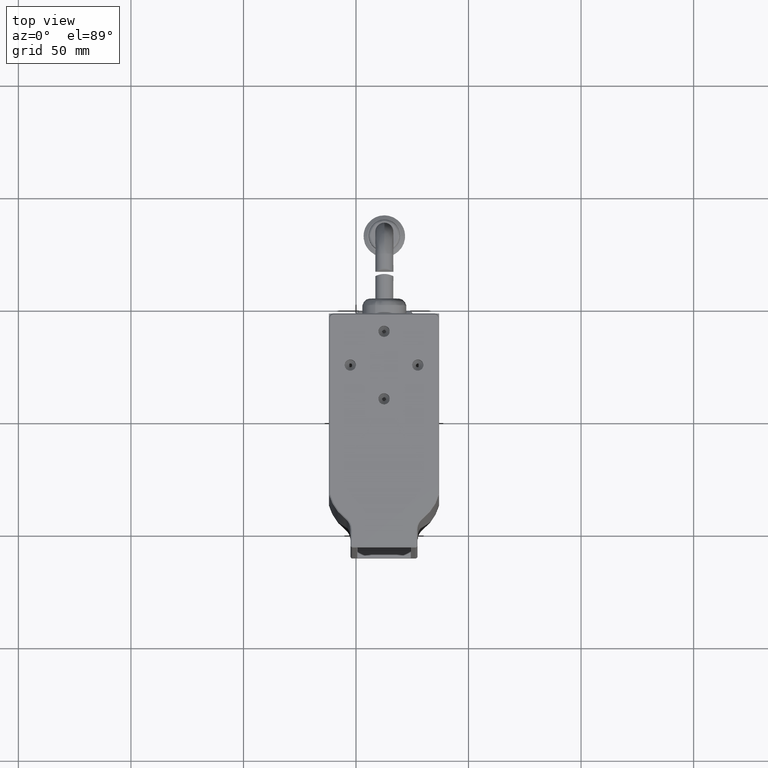
[diagram: clean part render]
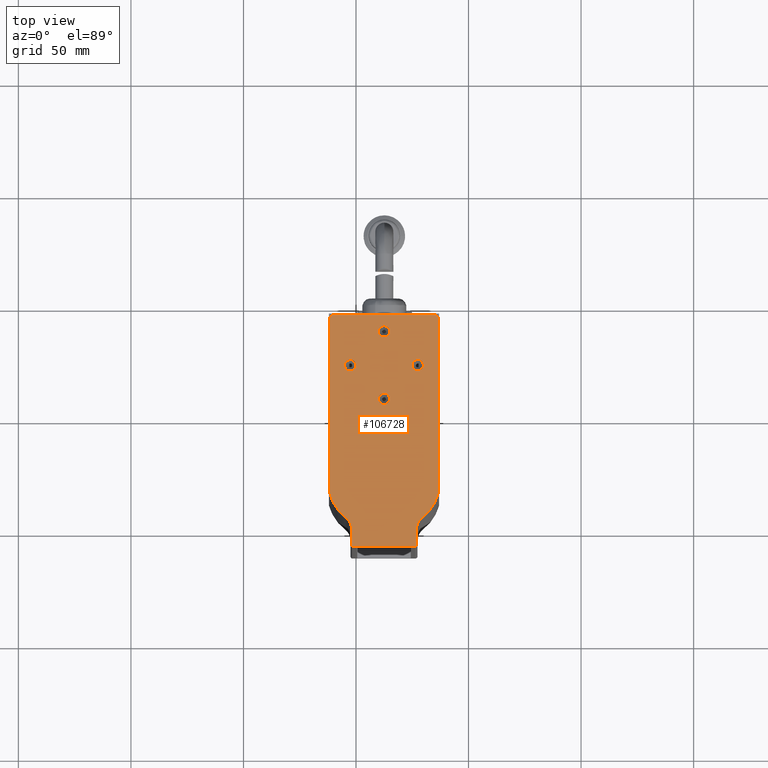
[diagram: same view with one face highlighted and labeled with its STEP entity id]
A machine part, top view. The second image highlights one B-rep face of the part: STEP entity #106728.
In plain terms, the highlighted planar face has unit normal (0, 0, -1).
Its self-contained STEP definition (entity closure, byte-faithful):
#489 = EDGE_CURVE ( 'NONE', #10592, #62649, #75304, .T. ) ;
#1630 = EDGE_CURVE ( 'NONE', #29000, #48265, #110262, .T. ) ;
#2596 = CARTESIAN_POINT ( 'NONE',  ( -61.56201180637545200, -36.23801724235212200, 142.0000000000000600 ) ) ;
#3131 = CIRCLE ( 'NONE', #53974, 1.499999999964529700 ) ;
#3778 = CARTESIAN_POINT ( 'NONE',  ( -37.56201180637544500, 36.00452420306967800, 142.0000000000000600 ) ) ;
#4639 = DIRECTION ( 'NONE',  ( 0.0000000000000000000, 1.000000000000000000, 0.0000000000000000000 ) ) ;
#6018 = FACE_BOUND ( 'NONE', #111613, .T. ) ;
#6130 = DIRECTION ( 'NONE',  ( 0.0000000000000000000, 0.0000000000000000000, -1.000000000000000000 ) ) ;
#6984 = CARTESIAN_POINT ( 'NONE',  ( -51.96201180638706100, -51.91295114031437700, 142.0000000000014500 ) ) ;
#9124 = CIRCLE ( 'NONE', #112116, 2.499999999999998700 ) ;
#9854 = CARTESIAN_POINT ( 'NONE',  ( -60.06201180637548000, 43.50452420309240900, 141.9999999999773200 ) ) ;
#10136 = EDGE_LOOP ( 'NONE', ( #108541, #96182 ) ) ;
#10592 = VERTEX_POINT ( 'NONE', #121908 ) ;
#11581 = AXIS2_PLACEMENT_3D ( 'NONE', #24391, #95141, #14859 ) ;
#13870 = CIRCLE ( 'NONE', #84839, 2.499999999999998700 ) ;
#14859 = DIRECTION ( 'NONE',  ( 0.0000000000000000000, 1.000000000000000000, 0.0000000000000000000 ) ) ;
#15448 = EDGE_CURVE ( 'NONE', #91281, #65148, #21791, .T. ) ;
#16136 = CARTESIAN_POINT ( 'NONE',  ( -22.56201180637544100, 21.00452420306967500, 142.0000000000000600 ) ) ;
#16587 = CARTESIAN_POINT ( 'NONE',  ( -42.60050320496788600, -31.14253440928075600, 142.0000000000000600 ) ) ;
#17168 = CARTESIAN_POINT ( 'NONE',  ( -60.06201180637545200, 42.00452420306967100, 141.9999999999545800 ) ) ;
#17413 = CARTESIAN_POINT ( 'NONE',  ( -58.46201180637545700, -51.91295114031439100, 142.0000000000313200 ) ) ;
#17424 = DIRECTION ( 'NONE',  ( -1.000000000000000000, -0.0000000000000000000, -0.0000000000000000000 ) ) ;
#17859 = EDGE_LOOP ( 'NONE', ( #31716, #79994 ) ) ;
#19100 = CARTESIAN_POINT ( 'NONE',  ( -13.56201180638113800, 42.00452420306967100, 142.0000000000057400 ) ) ;
#19122 = DIRECTION ( 'NONE',  ( 0.0000000000000000000, 0.0000000000000000000, 1.000000000000000000 ) ) ;
#20252 = ORIENTED_EDGE ( 'NONE', *, *, #123904, .F. ) ;
#21249 = DIRECTION ( 'NONE',  ( 0.0000000000000000000, -1.000000000000000000, 0.0000000000000000000 ) ) ;
#21357 = DIRECTION ( 'NONE',  ( 0.0000000000000000000, -1.000000000000000000, 0.0000000000000000000 ) ) ;
#21507 = DIRECTION ( 'NONE',  ( 0.0000000000000000000, -1.000000000000000000, 0.0000000000000000000 ) ) ;
#21621 = DIRECTION ( 'NONE',  ( 0.0000000000000000000, 1.000000000000000000, 0.0000000000000000000 ) ) ;
#21791 = CIRCLE ( 'NONE', #80540, 2.499999999999998700 ) ;
#22359 = ORIENTED_EDGE ( 'NONE', *, *, #44801, .F. ) ;
#22385 = VERTEX_POINT ( 'NONE', #53429 ) ;
#23359 = CARTESIAN_POINT ( 'NONE',  ( -13.56201180637544800, -7.995475796930315400, 142.0000000000000600 ) ) ;
#24391 = CARTESIAN_POINT ( 'NONE',  ( -37.56201180637544500, -7.995475796930315400, 142.0000000000000600 ) ) ;
#24838 = DIRECTION ( 'NONE',  ( 0.0000000000000000000, 1.000000000000000000, 0.0000000000000000000 ) ) ;
#25952 = DIRECTION ( 'NONE',  ( 0.0000000000000000000, -1.000000000000000000, 0.0000000000000000000 ) ) ;
#26087 = PLANE ( 'NONE',  #11581 ) ;
#26372 = DIRECTION ( 'NONE',  ( -0.0000000000000000000, -0.0000000000000000000, 1.000000000000000000 ) ) ;
#27589 = DIRECTION ( 'NONE',  ( 1.000000000000000000, 0.0000000000000000000, 0.0000000000000000000 ) ) ;
#27661 = FACE_BOUND ( 'NONE', #49294, .T. ) ;
#28138 = EDGE_CURVE ( 'NONE', #76583, #119623, #83942, .T. ) ;
#28768 = LINE ( 'NONE', #101812, #104413 ) ;
#28828 = VERTEX_POINT ( 'NONE', #45734 ) ;
#29000 = VERTEX_POINT ( 'NONE', #39133 ) ;
#30705 = CIRCLE ( 'NONE', #74992, 1.500000000021373100 ) ;
#30963 = CARTESIAN_POINT ( 'NONE',  ( -51.96201180634700700, -58.99547579693080500, 142.0000000000284800 ) ) ;
#31259 = ORIENTED_EDGE ( 'NONE', *, *, #103344, .F. ) ;
#31628 = ORIENTED_EDGE ( 'NONE', *, *, #57352, .F. ) ;
#31716 = ORIENTED_EDGE ( 'NONE', *, *, #99585, .F. ) ;
#31992 = DIRECTION ( 'NONE',  ( -0.0000000000000000000, -0.0000000000000000000, 1.000000000000000000 ) ) ;
#32257 = DIRECTION ( 'NONE',  ( -0.0000000000000000000, -0.0000000000000000000, 1.000000000000000000 ) ) ;
#32635 = VECTOR ( 'NONE', #82525, 1000.000000000000000 ) ;
#33335 = AXIS2_PLACEMENT_3D ( 'NONE', #17413, #19122, #48504 ) ;
#33821 = FACE_OUTER_BOUND ( 'NONE', #107433, .T. ) ;
#35620 = AXIS2_PLACEMENT_3D ( 'NONE', #105779, #26372, #25952 ) ;
#35640 = VERTEX_POINT ( 'NONE', #45847 ) ;
#36816 = LINE ( 'NONE', #67312, #56974 ) ;
#37645 = CARTESIAN_POINT ( 'NONE',  ( -37.56201180637544500, -59.49547579693031500, 142.0000000000000600 ) ) ;
#38245 = VECTOR ( 'NONE', #17424, 1000.000000000000000 ) ;
#38348 = CARTESIAN_POINT ( 'NONE',  ( -37.56201180637543800, 6.004524203069676600, 142.0000000000000600 ) ) ;
#39038 = VERTEX_POINT ( 'NONE', #6984 ) ;
#39133 = CARTESIAN_POINT ( 'NONE',  ( -23.16201180638386200, -51.91295114031438400, 142.0000000000000600 ) ) ;
#40453 = VERTEX_POINT ( 'NONE', #67955 ) ;
#41099 = EDGE_CURVE ( 'NONE', #65148, #91281, #9124, .T. ) ;
#42180 = ORIENTED_EDGE ( 'NONE', *, *, #1630, .F. ) ;
#42208 = ORIENTED_EDGE ( 'NONE', *, *, #112832, .F. ) ;
#42885 = CIRCLE ( 'NONE', #88408, 6.500000000024493300 ) ;
#43573 = EDGE_CURVE ( 'NONE', #28828, #52228, #111960, .T. ) ;
#44801 = EDGE_CURVE ( 'NONE', #52228, #49492, #120988, .T. ) ;
#45734 = CARTESIAN_POINT ( 'NONE',  ( -54.51700063089501200, -46.74701590789633300, 142.0000000000156600 ) ) ;
#45847 = CARTESIAN_POINT ( 'NONE',  ( -37.56201180637544500, 38.50452420306967100, 142.0000000000000600 ) ) ;
#46823 = CARTESIAN_POINT ( 'NONE',  ( -32.52352040778300300, -31.14253440928075600, 142.0000000000000600 ) ) ;
#48265 = VERTEX_POINT ( 'NONE', #92151 ) ;
#48504 = DIRECTION ( 'NONE',  ( 0.0000000000000000000, -1.000000000000000000, 0.0000000000000000000 ) ) ;
#49294 = EDGE_LOOP ( 'NONE', ( #88190, #76832 ) ) ;
#49492 = VERTEX_POINT ( 'NONE', #102067 ) ;
#50587 = ORIENTED_EDGE ( 'NONE', *, *, #122748, .F. ) ;
#50607 = CARTESIAN_POINT ( 'NONE',  ( -37.56201180637543800, 6.004524203069676600, 142.0000000000000600 ) ) ;
#50725 = AXIS2_PLACEMENT_3D ( 'NONE', #101958, #72194, #61052 ) ;
#52228 = VERTEX_POINT ( 'NONE', #2596 ) ;
#52964 = VECTOR ( 'NONE', #4639, 1000.000000000000000 ) ;
#53429 = CARTESIAN_POINT ( 'NONE',  ( -22.56201180637544100, 23.50452420306967500, 142.0000000000000600 ) ) ;
#53974 = AXIS2_PLACEMENT_3D ( 'NONE', #70784, #80772, #21621 ) ;
#54672 = CIRCLE ( 'NONE', #33335, 6.499999999998923500 ) ;
#55230 = EDGE_CURVE ( 'NONE', #35640, #40453, #71822, .T. ) ;
#55806 = CARTESIAN_POINT ( 'NONE',  ( -52.56201180637544500, 23.50452420306967800, 142.0000000000000600 ) ) ;
#56974 = VECTOR ( 'NONE', #27589, 1000.000000000000000 ) ;
#57352 = EDGE_CURVE ( 'NONE', #48265, #10592, #125049, .T. ) ;
#57586 = AXIS2_PLACEMENT_3D ( 'NONE', #3778, #121752, #112191 ) ;
#57836 = CIRCLE ( 'NONE', #96728, 19.63422404230373500 ) ;
#58240 = EDGE_CURVE ( 'NONE', #126410, #39038, #28768, .T. ) ;
#58551 = DIRECTION ( 'NONE',  ( 0.0000000000000000000, 1.000000000000000000, 0.0000000000000000000 ) ) ;
#61052 = DIRECTION ( 'NONE',  ( 0.0000000000000000000, -1.000000000000000000, 0.0000000000000000000 ) ) ;
#62649 = VERTEX_POINT ( 'NONE', #95492 ) ;
#62817 = DIRECTION ( 'NONE',  ( -0.0000000000000000000, -0.0000000000000000000, 1.000000000000000000 ) ) ;
#64146 = ORIENTED_EDGE ( 'NONE', *, *, #68768, .F. ) ;
#65148 = VERTEX_POINT ( 'NONE', #70022 ) ;
#65376 = CARTESIAN_POINT ( 'NONE',  ( -51.46201180637542900, -58.99547579693013700, 142.0000000000569000 ) ) ;
#65446 = CIRCLE ( 'NONE', #50725, 2.499999999999998700 ) ;
#66044 = CARTESIAN_POINT ( 'NONE',  ( -15.06201180637544600, 43.50452420304944200, 142.0000000000199500 ) ) ;
#66578 = VERTEX_POINT ( 'NONE', #19100 ) ;
#66707 = EDGE_CURVE ( 'NONE', #119623, #76583, #65446, .T. ) ;
#66791 = CARTESIAN_POINT ( 'NONE',  ( -37.56201180637543800, 8.504524203069674800, 142.0000000000000600 ) ) ;
#66821 = ORIENTED_EDGE ( 'NONE', *, *, #41099, .F. ) ;
#67312 = CARTESIAN_POINT ( 'NONE',  ( -37.56201180637544500, 43.50452420306967800, 142.0000000000000600 ) ) ;
#67955 = CARTESIAN_POINT ( 'NONE',  ( -37.56201180637544500, 33.50452420306967800, 142.0000000000000600 ) ) ;
#67975 = DIRECTION ( 'NONE',  ( 0.0000000000000000000, 0.0000000000000000000, -1.000000000000000000 ) ) ;
#68555 = VECTOR ( 'NONE', #93824, 1000.000000000000000 ) ;
#68768 = EDGE_CURVE ( 'NONE', #113997, #29000, #42885, .T. ) ;
#69430 = VERTEX_POINT ( 'NONE', #66044 ) ;
#70022 = CARTESIAN_POINT ( 'NONE',  ( -37.56201180637543800, 3.504524203069677500, 142.0000000000000600 ) ) ;
#70703 = EDGE_CURVE ( 'NONE', #69430, #66578, #3131, .T. ) ;
#70784 = CARTESIAN_POINT ( 'NONE',  ( -15.06201180637544600, 42.00452420306967100, 142.0000000000114300 ) ) ;
#71275 = CARTESIAN_POINT ( 'NONE',  ( -13.56201180637544800, -36.23801724235217100, 142.0000000000000600 ) ) ;
#71822 = CIRCLE ( 'NONE', #57586, 2.499999999999995100 ) ;
#72194 = DIRECTION ( 'NONE',  ( -0.0000000000000000000, -0.0000000000000000000, 1.000000000000000000 ) ) ;
#74992 = AXIS2_PLACEMENT_3D ( 'NONE', #17168, #85012, #125612 ) ;
#75229 = DIRECTION ( 'NONE',  ( 0.0000000000000000000, 1.000000000000000000, 0.0000000000000000000 ) ) ;
#75304 = LINE ( 'NONE', #37645, #38245 ) ;
#76583 = VERTEX_POINT ( 'NONE', #55806 ) ;
#76832 = ORIENTED_EDGE ( 'NONE', *, *, #55230, .F. ) ;
#77105 = CARTESIAN_POINT ( 'NONE',  ( -20.60702298184853700, -46.74701590786730100, 142.0000000000000600 ) ) ;
#77711 = CIRCLE ( 'NONE', #35620, 2.499999999999995100 ) ;
#78603 = EDGE_CURVE ( 'NONE', #22385, #90128, #126255, .T. ) ;
#78878 = CARTESIAN_POINT ( 'NONE',  ( -52.56201180637544500, 18.50452420306968200, 142.0000000000000600 ) ) ;
#79994 = ORIENTED_EDGE ( 'NONE', *, *, #78603, .F. ) ;
#80540 = AXIS2_PLACEMENT_3D ( 'NONE', #50607, #31992, #21249 ) ;
#80655 = CARTESIAN_POINT ( 'NONE',  ( -22.56201180637544100, 21.00452420306967500, 142.0000000000000600 ) ) ;
#80772 = DIRECTION ( 'NONE',  ( 0.0000000000000000000, 0.0000000000000000000, -1.000000000000000000 ) ) ;
#82525 = DIRECTION ( 'NONE',  ( -0.0000000000000000000, -1.000000000000000000, -0.0000000000000000000 ) ) ;
#83942 = CIRCLE ( 'NONE', #89212, 2.499999999999998700 ) ;
#84839 = AXIS2_PLACEMENT_3D ( 'NONE', #16136, #95588, #123742 ) ;
#85012 = DIRECTION ( 'NONE',  ( 0.0000000000000000000, 0.0000000000000000000, -1.000000000000000000 ) ) ;
#86352 = EDGE_CURVE ( 'NONE', #49492, #89723, #30705, .T. ) ;
#88190 = ORIENTED_EDGE ( 'NONE', *, *, #113482, .F. ) ;
#88408 = AXIS2_PLACEMENT_3D ( 'NONE', #117898, #127912, #119597 ) ;
#89212 = AXIS2_PLACEMENT_3D ( 'NONE', #120665, #62817, #21357 ) ;
#89723 = VERTEX_POINT ( 'NONE', #9854 ) ;
#90128 = VERTEX_POINT ( 'NONE', #117276 ) ;
#91202 = ORIENTED_EDGE ( 'NONE', *, *, #43573, .F. ) ;
#91281 = VERTEX_POINT ( 'NONE', #66791 ) ;
#92151 = CARTESIAN_POINT ( 'NONE',  ( -23.16201180632453200, -58.99547579693030700, 142.0000000000569000 ) ) ;
#92758 = DIRECTION ( 'NONE',  ( 0.0000000000000000000, 1.000000000000000000, 0.0000000000000000000 ) ) ;
#93824 = DIRECTION ( 'NONE',  ( -0.0000000000000000000, -1.000000000000000000, -0.0000000000000000000 ) ) ;
#94747 = DIRECTION ( 'NONE',  ( 0.0000000000000000000, 0.0000000000000000000, -1.000000000000000000 ) ) ;
#95141 = DIRECTION ( 'NONE',  ( 0.0000000000000000000, 0.0000000000000000000, -1.000000000000000000 ) ) ;
#95492 = CARTESIAN_POINT ( 'NONE',  ( -51.46201180637542900, -59.49547579691007100, 142.0000000000569000 ) ) ;
#95588 = DIRECTION ( 'NONE',  ( -0.0000000000000000000, -0.0000000000000000000, 1.000000000000000000 ) ) ;
#96182 = ORIENTED_EDGE ( 'NONE', *, *, #28138, .F. ) ;
#96692 = DIRECTION ( 'NONE',  ( 0.0000000000000000000, 1.000000000000000000, 0.0000000000000000000 ) ) ;
#96728 = AXIS2_PLACEMENT_3D ( 'NONE', #46823, #67975, #58551 ) ;
#98015 = DIRECTION ( 'NONE',  ( 0.0000000000000000000, 0.0000000000000000000, -1.000000000000000000 ) ) ;
#99585 = EDGE_CURVE ( 'NONE', #90128, #22385, #13870, .T. ) ;
#100091 = AXIS2_PLACEMENT_3D ( 'NONE', #117446, #98015, #96692 ) ;
#100505 = ORIENTED_EDGE ( 'NONE', *, *, #489, .F. ) ;
#101812 = CARTESIAN_POINT ( 'NONE',  ( -51.96201180637542900, -7.995475796930315400, 142.0000000000000600 ) ) ;
#101958 = CARTESIAN_POINT ( 'NONE',  ( -52.56201180637544500, 21.00452420306967800, 142.0000000000000600 ) ) ;
#102067 = CARTESIAN_POINT ( 'NONE',  ( -61.56201180642899100, 42.00452420306967800, 141.9999999999915300 ) ) ;
#103344 = EDGE_CURVE ( 'NONE', #39038, #28828, #54672, .T. ) ;
#104109 = EDGE_CURVE ( 'NONE', #62649, #126410, #105277, .T. ) ;
#104413 = VECTOR ( 'NONE', #92758, 1000.000000000000000 ) ;
#104942 = FACE_BOUND ( 'NONE', #10136, .T. ) ;
#105277 = CIRCLE ( 'NONE', #113701, 0.5000000000002780000 ) ;
#105779 = CARTESIAN_POINT ( 'NONE',  ( -37.56201180637544500, 36.00452420306967800, 142.0000000000000600 ) ) ;
#106728 = ADVANCED_FACE ( 'NONE', ( #33821, #104942, #128197, #27661, #6018 ), #26087, .F. ) ;
#107433 = EDGE_LOOP ( 'NONE', ( #42208, #50587, #125961, #20252, #125698, #22359, #91202, #31259, #120804, #108303, #100505, #31628, #42180, #64146 ) ) ;
#108303 = ORIENTED_EDGE ( 'NONE', *, *, #104109, .F. ) ;
#108541 = ORIENTED_EDGE ( 'NONE', *, *, #66707, .F. ) ;
#110262 = LINE ( 'NONE', #114087, #68555 ) ;
#111613 = EDGE_LOOP ( 'NONE', ( #66821, #126256 ) ) ;
#111960 = CIRCLE ( 'NONE', #124116, 19.63422404230372800 ) ;
#112116 = AXIS2_PLACEMENT_3D ( 'NONE', #38348, #117453, #127447 ) ;
#112191 = DIRECTION ( 'NONE',  ( 0.0000000000000000000, -1.000000000000000000, 0.0000000000000000000 ) ) ;
#112832 = EDGE_CURVE ( 'NONE', #122598, #113997, #57836, .T. ) ;
#113482 = EDGE_CURVE ( 'NONE', #40453, #35640, #77711, .T. ) ;
#113701 = AXIS2_PLACEMENT_3D ( 'NONE', #65376, #6130, #75229 ) ;
#113997 = VERTEX_POINT ( 'NONE', #77105 ) ;
#114087 = CARTESIAN_POINT ( 'NONE',  ( -23.16201180637546700, -7.995475796930315400, 142.0000000000000600 ) ) ;
#117276 = CARTESIAN_POINT ( 'NONE',  ( -22.56201180637544100, 18.50452420306967800, 142.0000000000000600 ) ) ;
#117446 = CARTESIAN_POINT ( 'NONE',  ( -23.66201180637546400, -58.99547579693013700, 142.0000000000569000 ) ) ;
#117453 = DIRECTION ( 'NONE',  ( -0.0000000000000000000, -0.0000000000000000000, 1.000000000000000000 ) ) ;
#117898 = CARTESIAN_POINT ( 'NONE',  ( -16.66201180637543200, -51.91295114031439100, 142.0000000000000600 ) ) ;
#119597 = DIRECTION ( 'NONE',  ( 0.0000000000000000000, -1.000000000000000000, 0.0000000000000000000 ) ) ;
#119623 = VERTEX_POINT ( 'NONE', #78878 ) ;
#120665 = CARTESIAN_POINT ( 'NONE',  ( -52.56201180637544500, 21.00452420306967800, 142.0000000000000600 ) ) ;
#120768 = LINE ( 'NONE', #23359, #32635 ) ;
#120804 = ORIENTED_EDGE ( 'NONE', *, *, #58240, .F. ) ;
#120988 = LINE ( 'NONE', #123040, #52964 ) ;
#121024 = AXIS2_PLACEMENT_3D ( 'NONE', #80655, #32257, #21507 ) ;
#121752 = DIRECTION ( 'NONE',  ( -0.0000000000000000000, -0.0000000000000000000, 1.000000000000000000 ) ) ;
#121908 = CARTESIAN_POINT ( 'NONE',  ( -23.66201180637547100, -59.49547579690188600, 142.0000000000284800 ) ) ;
#122598 = VERTEX_POINT ( 'NONE', #71275 ) ;
#122748 = EDGE_CURVE ( 'NONE', #66578, #122598, #120768, .T. ) ;
#123040 = CARTESIAN_POINT ( 'NONE',  ( -61.56201180637545200, -7.995475796930315400, 142.0000000000000600 ) ) ;
#123742 = DIRECTION ( 'NONE',  ( 0.0000000000000000000, -1.000000000000000000, 0.0000000000000000000 ) ) ;
#123904 = EDGE_CURVE ( 'NONE', #89723, #69430, #36816, .T. ) ;
#124116 = AXIS2_PLACEMENT_3D ( 'NONE', #16587, #94747, #24838 ) ;
#125049 = CIRCLE ( 'NONE', #100091, 0.5000000000571214200 ) ;
#125612 = DIRECTION ( 'NONE',  ( 0.0000000000000000000, 1.000000000000000000, 0.0000000000000000000 ) ) ;
#125698 = ORIENTED_EDGE ( 'NONE', *, *, #86352, .F. ) ;
#125961 = ORIENTED_EDGE ( 'NONE', *, *, #70703, .F. ) ;
#126255 = CIRCLE ( 'NONE', #121024, 2.499999999999998700 ) ;
#126256 = ORIENTED_EDGE ( 'NONE', *, *, #15448, .F. ) ;
#126410 = VERTEX_POINT ( 'NONE', #30963 ) ;
#127447 = DIRECTION ( 'NONE',  ( 0.0000000000000000000, -1.000000000000000000, 0.0000000000000000000 ) ) ;
#127912 = DIRECTION ( 'NONE',  ( 0.0000000000000000000, 0.0000000000000000000, 1.000000000000000000 ) ) ;
#128197 = FACE_BOUND ( 'NONE', #17859, .T. ) ;